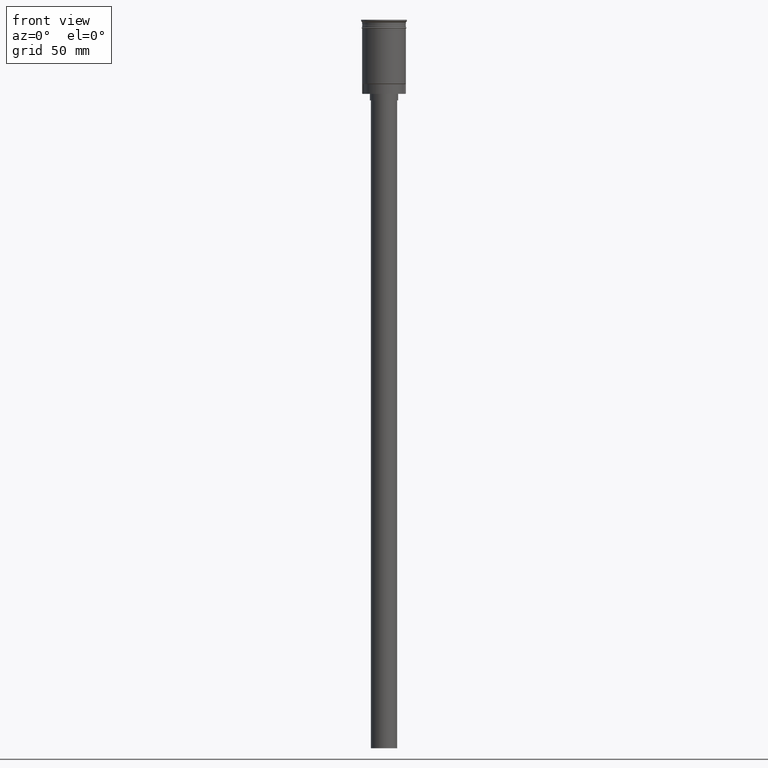
[diagram: clean part render]
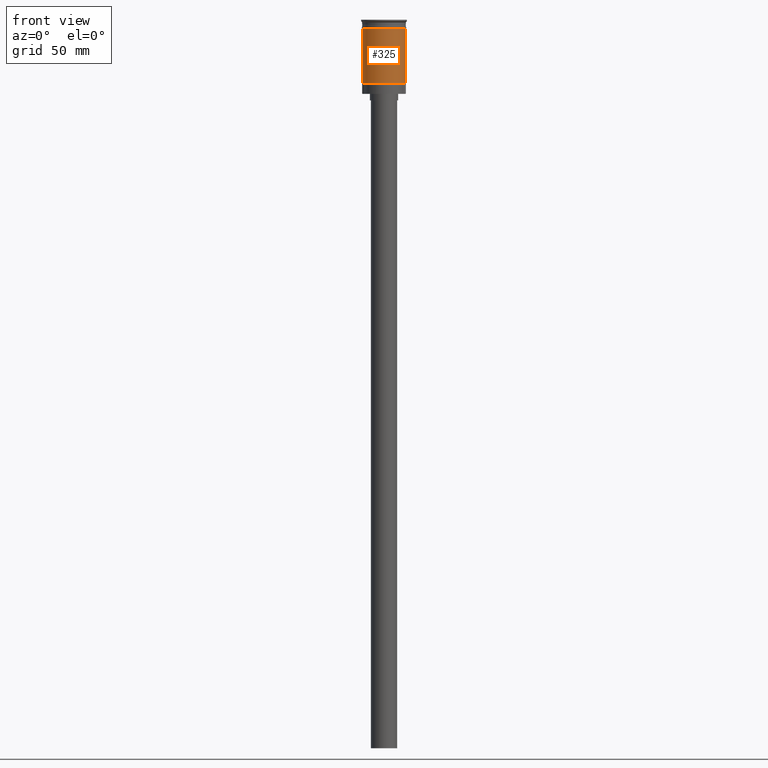
[diagram: same view with one face highlighted and labeled with its STEP entity id]
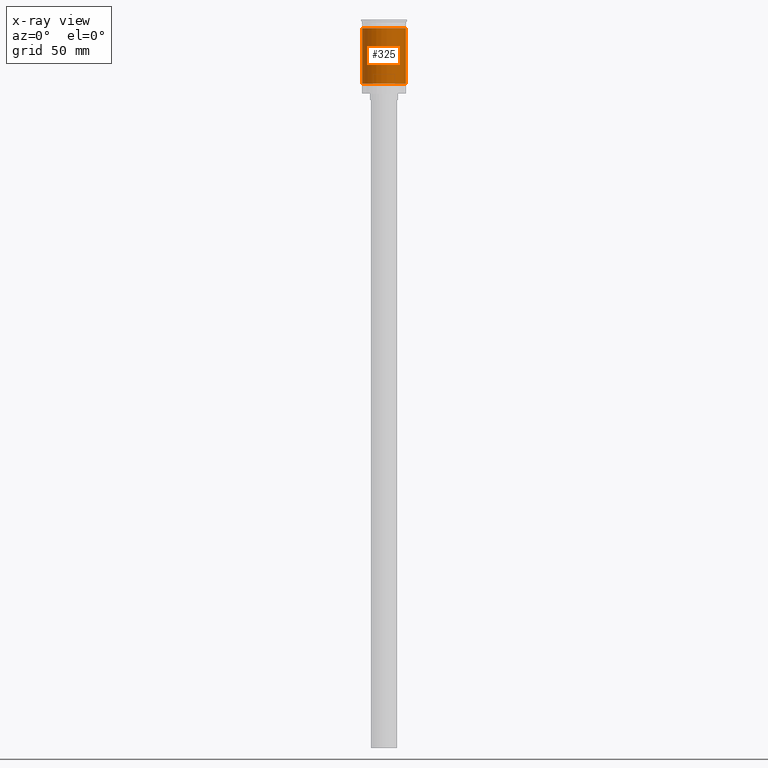
[diagram: x-ray of the same camera — body ghosted, the highlighted face saturated]
A machine part, front view. The second image highlights one B-rep face of the part: STEP entity #325.
The next image is the same camera in x-ray: the body ghosted, the highlighted face saturated — about 0% of this face is hidden behind the body in this view.
In plain terms, the highlighted cylindrical surface (edge-blend (fillet) strip) has radius 10 mm, axis along (-0, -0, 1).
Its self-contained STEP definition (entity closure, byte-faithful):
#27 = VERTEX_POINT ( 'NONE', #1434 ) ;
#29 = DIRECTION ( 'NONE',  ( -0.000000000000000000, -0.000000000000000000, 1.000000000000000000 ) ) ;
#43 = CARTESIAN_POINT ( 'NONE',  ( 0.000000000000000000, 0.000000000000000000, 0.000000000000000000 ) ) ;
#53 = ORIENTED_EDGE ( 'NONE', *, *, #621, .T. ) ;
#58 = VECTOR ( 'NONE', #324, 1000.000000000000000 ) ;
#225 = DIRECTION ( 'NONE',  ( -1.000000000000000000, 0.000000000000000000, 0.000000000000000000 ) ) ;
#231 = ORIENTED_EDGE ( 'NONE', *, *, #922, .F. ) ;
#270 = CARTESIAN_POINT ( 'NONE',  ( -10.00000000000000000, 1.224646799147353256E-15, -3.999999999999996447 ) ) ;
#294 = DIRECTION ( 'NONE',  ( 1.000000000000000000, 0.000000000000000000, 0.000000000000000000 ) ) ;
#324 = DIRECTION ( 'NONE',  ( -0.000000000000000000, -0.000000000000000000, 1.000000000000000000 ) ) ;
#325 = ADVANCED_FACE ( 'NONE', ( #1483 ), #385, .T. ) ;
#353 = DIRECTION ( 'NONE',  ( -0.000000000000000000, -0.000000000000000000, 1.000000000000000000 ) ) ;
#371 = AXIS2_PLACEMENT_3D ( 'NONE', #43, #29, #1365 ) ;
#385 = CYLINDRICAL_SURFACE ( 'NONE', #371, 9.999999999999994671 ) ;
#388 = VERTEX_POINT ( 'NONE', #512 ) ;
#459 = DIRECTION ( 'NONE',  ( -0.000000000000000000, -0.000000000000000000, 1.000000000000000000 ) ) ;
#467 = EDGE_CURVE ( 'NONE', #1171, #388, #1180, .T. ) ;
#512 = CARTESIAN_POINT ( 'NONE',  ( 9.999999999999998224, 0.000000000000000000, -3.999999999999996447 ) ) ;
#542 = ORIENTED_EDGE ( 'NONE', *, *, #1105, .F. ) ;
#621 = EDGE_CURVE ( 'NONE', #27, #1171, #971, .T. ) ;
#696 = CARTESIAN_POINT ( 'NONE',  ( 0.000000000000000000, 0.000000000000000000, -3.999999999999996447 ) ) ;
#724 = VERTEX_POINT ( 'NONE', #270 ) ;
#748 = DIRECTION ( 'NONE',  ( -0.000000000000000000, -0.000000000000000000, 1.000000000000000000 ) ) ;
#922 = EDGE_CURVE ( 'NONE', #724, #388, #1325, .T. ) ;
#923 = EDGE_LOOP ( 'NONE', ( #542, #53, #1065, #231 ) ) ;
#971 = CIRCLE ( 'NONE', #1147, 9.999999999999994671 ) ;
#1065 = ORIENTED_EDGE ( 'NONE', *, *, #467, .T. ) ;
#1105 = EDGE_CURVE ( 'NONE', #27, #724, #1361, .T. ) ;
#1147 = AXIS2_PLACEMENT_3D ( 'NONE', #1571, #353, #225 ) ;
#1171 = VERTEX_POINT ( 'NONE', #1414 ) ;
#1180 = LINE ( 'NONE', #1188, #58 ) ;
#1188 = CARTESIAN_POINT ( 'NONE',  ( 9.999999999999994671, 0.000000000000000000, 0.000000000000000000 ) ) ;
#1201 = AXIS2_PLACEMENT_3D ( 'NONE', #696, #459, #294 ) ;
#1325 = CIRCLE ( 'NONE', #1201, 9.999999999999998224 ) ;
#1361 = LINE ( 'NONE', #1504, #1591 ) ;
#1365 = DIRECTION ( 'NONE',  ( 1.000000000000000000, 0.000000000000000000, 0.000000000000000000 ) ) ;
#1414 = CARTESIAN_POINT ( 'NONE',  ( 9.999999999999994671, 1.224646799147352665E-15, -29.30000000000002913 ) ) ;
#1434 = CARTESIAN_POINT ( 'NONE',  ( -9.999999999999991118, 0.000000000000000000, -29.30000000000002913 ) ) ;
#1483 = FACE_OUTER_BOUND ( 'NONE', #923, .T. ) ;
#1504 = CARTESIAN_POINT ( 'NONE',  ( -9.999999999999994671, 1.224646799147352665E-15, 0.000000000000000000 ) ) ;
#1571 = CARTESIAN_POINT ( 'NONE',  ( 0.000000000000000000, 0.000000000000000000, -29.30000000000002913 ) ) ;
#1591 = VECTOR ( 'NONE', #748, 1000.000000000000000 ) ;